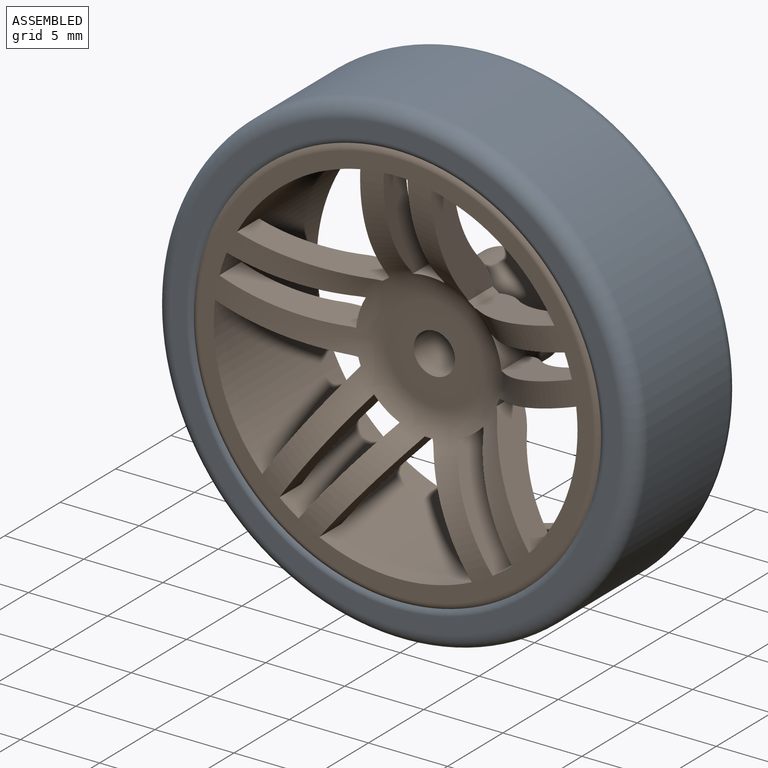
[diagram: assembled view]
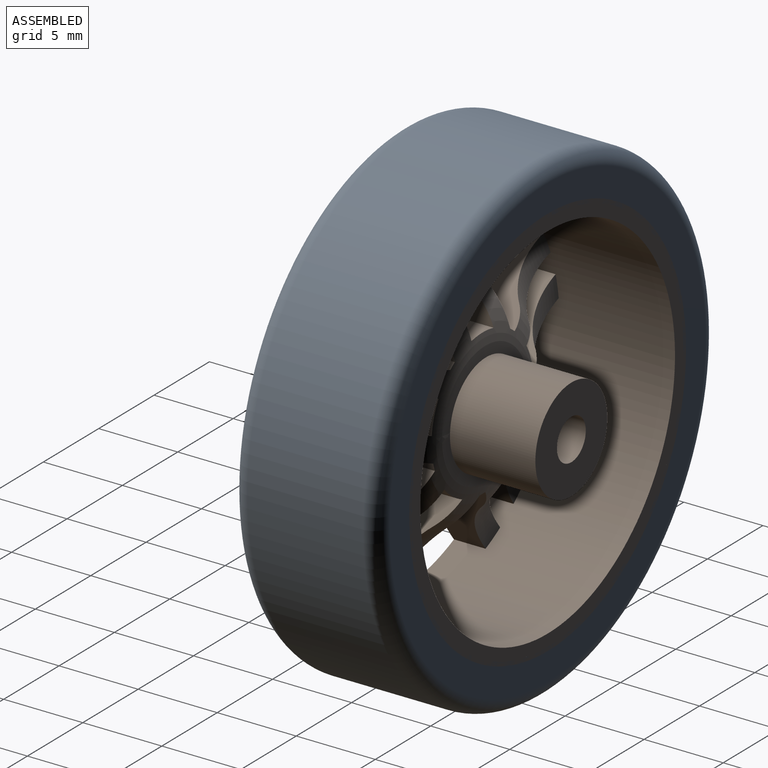
[diagram: assembled view, second angle]
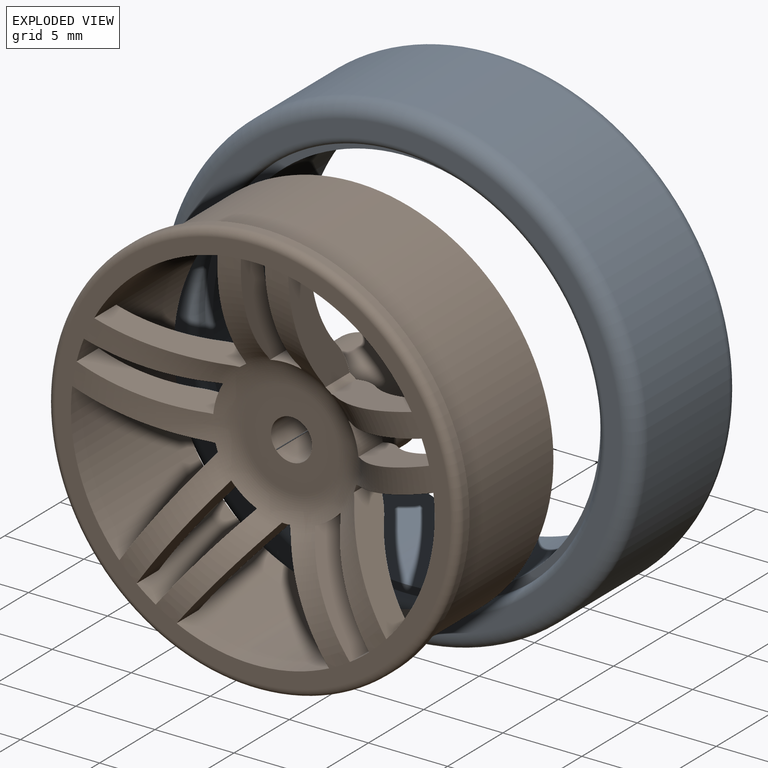
[diagram: exploded view]
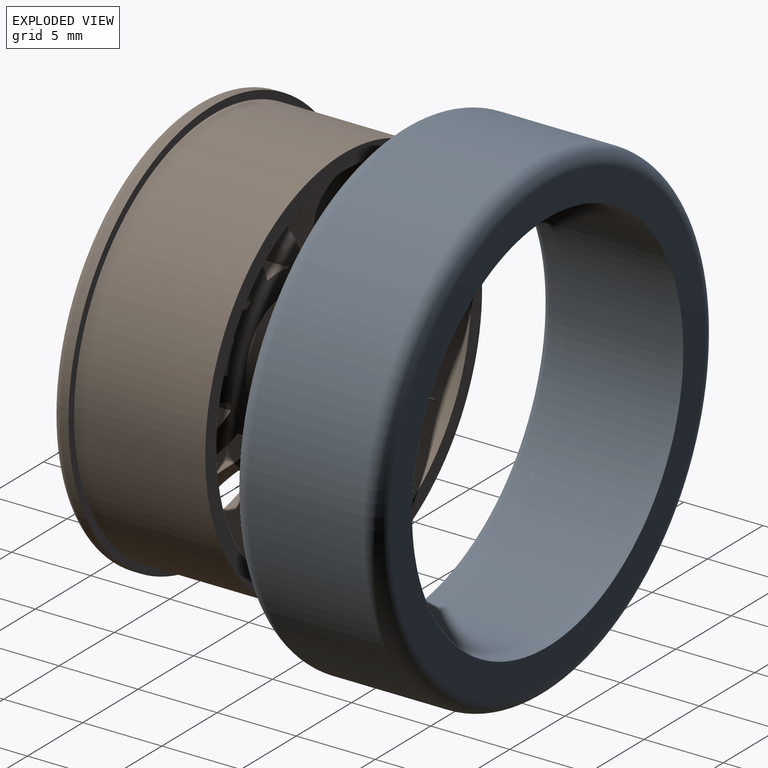
[diagram: exploded view, second angle]
FCSTD DOCUMENT  (FreeCAD 1.0R39285 (Git))
Label: 5SpokeWheel1
License: All rights reserved
LicenseURL: https://en.wikipedia.org/wiki/All_rights_reserved
objects: App::Link×2, App::FeaturePython×2, Assembly::JointGroup×1, Assembly::AssemblyObject×1
EXTERNAL_REF file=RimsAndTires/5SpokeRim1.FCStd obj=Body
EXTERNAL_REF file=RimsAndTires/Tire.FCStd obj=Body

FEATURE [App::Link] _SpokeRim1  label="5SpokeRim1"
  LinkedObject = -> <external RimsAndTires/5SpokeRim1.FCStd>#Body
FEATURE [App::FeaturePython] GroundedJoint  # Assembly grounded joint (typed FeaturePython)
  ObjectToGround = -> _SpokeRim1
FEATURE [App::Link] SingleTire
  LinkPlacement = pos=(0,-0.75,0) rot=(0,0,1;0rad)
  LinkedObject = -> <external RimsAndTires/Tire.FCStd>#Body
  Placement = pos=(0,-0.75,0) rot=(0,0,1;0rad)
FEATURE [App::FeaturePython] Joint  label="Fixed"  # Assembly joint (typed FeaturePython)
  Activated = true
  AngleMax = 0
  AngleMin = 0
  Detach1 = false
  Detach2 = false
  Distance = 0
  Distance2 = 0
  EnableAngleMax = false
  EnableAngleMin = false
  EnableLengthMax = false
  EnableLengthMin = false
  JointType = 0 (Fixed)
  LengthMax = 0
  LengthMin = 0
  Placement1 = pos=(0,-4.4,0) rot=(1,0,0;1.5708rad)
  Placement2 = pos=(0,-3.65,0) rot=(1,0,0;1.5708rad)
  Reference1 = -> Assembly [_SpokeRim1.Edge3,_SpokeRim1.Edge3]
  Reference2 = -> Assembly [SingleTire.Edge15,SingleTire.Edge15]
FEATURE [Assembly::JointGroup] Joints
  Group = -> [GroundedJoint,Joint]
FEATURE [Assembly::AssemblyObject] Assembly
  Group = -> [Joints,_SpokeRim1,GroundedJoint,SingleTire,Joint]
  Origin = -> Origin
  Type = Assembly

RESOLVED EXTERNAL PARTS (link-assembly join: the EXTERNAL_REF files above that resolve inside this repo's crawl, each included once):
---- part RimsAndTires/5SpokeRim1.FCStd = doc fcstd_a5917211275b ----
FCSTD DOCUMENT  (FreeCAD 1.0R39285 (Git))
Label: 5SpokeRim1
License: All rights reserved
LicenseURL: https://en.wikipedia.org/wiki/All_rights_reserved
objects: Sketcher::SketchObject×2, PartDesign::Revolution×1, PartDesign::Pocket×1, PartDesign::PolarPattern×1, App::Link×1, PartDesign::Fillet×1, PartDesign::Body×1
note: 16 computed .brp shape members not serialized (recipe doc carries the construction recipe); baked Part::Feature solids carry a one-line shape summary decoded from their .brp
EXTERNAL_REF file=../../../../Dimentions.FCStd obj=dd002

FEATURE [Sketcher::SketchObject] Sketch
  ArcFitTolerance = 1e-06
  AttachmentSupport = -> [XY_Plane]
  FullyConstrained = true
  MakeInternals = false
  MapMode = 5
  expr: Constraints[33] = <<Wheel>>.SingleThickness
  expr: Constraints[34] = <<Wheel>>.RimDiameter
  expr: Constraints[35] = <<Wheel>>.StemDiameter
  expr: Constraints[36] = <<Wheel>>.StemPoke
  expr: Constraints[37] = <<Wheel>>.AxelHoleDiameter
  expr: Constraints[52] = <<Wheel>>.RimLipThickness
  expr: Constraints[53] = <<Wheel>>.TireBeadWidth
  expr: Constraints[63] = <<Wheel>>.HubDip
  sketch-geometry (29):
    g0: LineSegment [constr] StartX=-1.3 StartY=5.4 StartZ=0 EndX=-1.3 EndY=-5.4 EndZ=0
    g1: LineSegment [constr] StartX=-1.3 StartY=-5.4 StartZ=0 EndX=-13 EndY=-5.4 EndZ=0
    g2: LineSegment [constr] StartX=-13 StartY=-5.4 StartZ=0 EndX=-13 EndY=3.9 EndZ=0
    g3: LineSegment [constr] StartX=-13 StartY=3.9 StartZ=0 EndX=-3.25 EndY=3.9 EndZ=0
    g4: LineSegment [constr] StartX=-3.25 StartY=3.9 StartZ=0 EndX=-3.25 EndY=5.4 EndZ=0
    g5: LineSegment [constr] StartX=-3.25 StartY=5.4 StartZ=0 EndX=-1.3 EndY=5.4 EndZ=0
    g6: LineSegment [constr] StartX=1.3 StartY=5.4 StartZ=0 EndX=1.3 EndY=-5.4 EndZ=0
    g7: LineSegment [constr] StartX=1.3 StartY=-5.4 StartZ=0 EndX=13 EndY=-5.4 EndZ=0
    g8: LineSegment [constr] StartX=13 StartY=-5.4 StartZ=0 EndX=13 EndY=3.9 EndZ=0
    g9: LineSegment [constr] StartX=13 StartY=3.9 StartZ=0 EndX=11.5 EndY=3.9 EndZ=0
    g10: LineSegment [constr] StartX=11.5 StartY=3.9 StartZ=0 EndX=11.5 EndY=-1.4 EndZ=0
    g11: LineSegment [constr] StartX=11.5 StartY=-1.4 StartZ=0 EndX=3.25 EndY=-1.4 EndZ=0
    g12: LineSegment [constr] StartX=3.25 StartY=-1.4 StartZ=0 EndX=3.25 EndY=5.4 EndZ=0
    g13: LineSegment StartX=3.25 StartY=5.4 StartZ=0 EndX=1.3 EndY=5.4 EndZ=0
    g14: LineSegment [constr] StartX=11.5 StartY=-1.4 StartZ=0 EndX=11.5 EndY=-5.4 EndZ=0
    g15: LineSegment StartX=11.5 StartY=3.9 StartZ=0 EndX=12.5 EndY=3.9 EndZ=0
    g16: LineSegment StartX=12.5 StartY=3.9 StartZ=0 EndX=12.5 EndY=-4.4 EndZ=0
    g17: LineSegment StartX=12.5 StartY=-4.4 StartZ=0 EndX=13 EndY=-4.4 EndZ=0
    g18: LineSegment StartX=13 StartY=-4.4 StartZ=0 EndX=13 EndY=-5.4 EndZ=0
    g19: LineSegment StartX=1.3 StartY=5.4 StartZ=0 EndX=1.3 EndY=-1.9 EndZ=0
    g20: LineSegment StartX=1.3 StartY=-1.9 StartZ=0 EndX=3 EndY=-1.9 EndZ=0
    g21: ArcOfCircle CenterX=3 CenterY=-4.67143 CenterZ=0 NormalX=0 NormalY=0 NormalZ=1 AngleXU=0 Radius=2.77143 StartAngle=0.789582 EndAngle=1.5708
    g22: ArcOfCircle CenterX=11.5 CenterY=3.9 CenterZ=0 NormalX=0 NormalY=0 NormalZ=1 AngleXU=0 Radius=9.3 StartAngle=3.93117 EndAngle=4.71239
    g23: LineSegment StartX=11.5 StartY=-5.4 StartZ=0 EndX=13 EndY=-5.4 EndZ=0
    g24: LineSegment StartX=3.25 StartY=5.4 StartZ=0 EndX=3.25 EndY=-0.00294118 EndZ=0
    g25: ArcOfCircle CenterX=3.25 CenterY=-4.41933 CenterZ=0 NormalX=0 NormalY=0 NormalZ=1 AngleXU=0 Radius=4.41639 StartAngle=0.789582 EndAngle=1.5708
    g26: ArcOfCircle CenterX=11.5 CenterY=3.9 CenterZ=0 NormalX=0 NormalY=0 NormalZ=1 AngleXU=0 Radius=7.3 StartAngle=3.93117 EndAngle=4.71239
    g27: LineSegment StartX=11.5 StartY=-3.4 StartZ=0 EndX=11.5 EndY=3.9 EndZ=0
    g28: LineSegment [constr] StartX=4.95148 StartY=-2.70355 StartZ=0 EndX=6.35976 EndY=-1.28343 EndZ=0
  constraints (78):
    c: Vertical(g0)
    c: Coincident(g0,g1)
    c: Horizontal(g1)
    c: Coincident(g1,g2)
    c: Vertical(g2)
    c: Coincident(g2,g3)
    c: Horizontal(g3)
    c: Coincident(g3,g4)
    c: Vertical(g4)
    c: Coincident(g4,g5)
    c: Coincident(g5,g0)
    c: Horizontal(g5)
    c: Coincident(g6,g7)
    c: Horizontal(g7)
    c: Coincident(g7,g8)
    c: Vertical(g8)
    c: Coincident(g8,g9)
    c: Horizontal(g9)
    c: Coincident(g9,g10)
    c: Vertical(g10)
    c: Coincident(g10,g11)
    c: Horizontal(g11)
    c: Coincident(g11,g12)
    c: Vertical(g12)
    c: Coincident(g12,g13)
    c: Coincident(g13,g6)
    c: Symmetric(g0,g6,g-2)
    c: Horizontal(g13)
    c: Equal(g13,g5)
    c: Symmetric(g6,g6,g-1)
    c: Equal(g0,g6)
    c: Equal(g2,g8)
    c: Equal(g1,g7)
    c: DistanceY(g6,g6) = 10.8
    c: DistanceX(g1,g7) = 26
    c: Distance(g4,g12) = 6.5
    c: DistanceY(g9,g12) = 1.5
    c: Distance(g0,g6) = 2.6
    c: DistanceX(g10,g7) = 1.5
    c: Coincident(g14,g10)
    c: PointOnObject(g14,g7)
    c: Vertical(g14)
    c: DistanceY(g14,g14) = 4
    c: Coincident(g9,g15)
    c: PointOnObject(g15,g9)
    c: Coincident(g15,g16)
    c: Vertical(g16)
    c: Coincident(g16,g17)
    c: Horizontal(g17)
    c: Coincident(g17,g18)
    c: Coincident(g18,g7)
    c: Vertical(g18)
    c: DistanceY(g18,g18) = 1
    c: DistanceX(g17,g17) = 0.5
    c: Coincident(g6,g19)
    c: PointOnObject(g19,g6)
    c: Coincident(g19,g20)
    c: Horizontal(g20)
    c: Tangent(g20,g21) = 1.5708
    c: Tangent(g21,g22) = 1.5708
    c: Coincident(g22,g14)
    c: Tangent(g22,g23) = -1.5708
    c: Coincident(g23,g7)
    c: DistanceY(g6,g19) = 3.5
    c: DistanceX(g-1,g20) = 3
    c: Coincident(g12,g24)
    c: PointOnObject(g24,g12)
    c: Perpendicular(g24,g25) = 4.71239
    c: Tangent(g25,g26) = 1.5708
    c: Perpendicular(g26,g27) = 1.5708
    c: Coincident(g27,g9)
    c: Vertical(g27)
    c: Horizontal(g26,g9)
    c: DistanceY(g14,g26) = 2
    c: Coincident(g28,g21)
    c: Coincident(g28,g25)
    c: Perpendicular(g22,g28)
    c: Perpendicular(g26,g28)
FEATURE [PartDesign::Revolution] Revolution
  Angle = 360
  Angle2 = 60
  Axis = (0,1,0)
  Base = (0,0,0)
  Profile = -> Sketch
  ReferenceAxis = -> Sketch [V_Axis]
  Refine = true
  Reversed = true
  Suppressed = false
  Type = 0
FEATURE [Sketcher::SketchObject] Sketch001
  ArcFitTolerance = 1e-06
  AttachmentSupport = -> [XZ_Plane]
  ExternalGeometry = -> [Revolution]
  FullyConstrained = true
  MakeInternals = false
  MapMode = 5
  Placement = pos=(0,0,0) rot=(1,0,0;1.5708rad)
  sketch-geometry (18):
    g0: LineSegment StartX=-0.75 StartY=11.4755 StartZ=0 EndX=-1 EndY=4.5 EndZ=0
    g1: LineSegment [constr] StartX=-1 StartY=4.5 StartZ=0 EndX=1 EndY=4.5 EndZ=0
    g2: LineSegment StartX=1 StartY=4.5 StartZ=0 EndX=0.75 EndY=11.4755 EndZ=0
    g3: LineSegment [constr] StartX=0.75 StartY=11.4755 StartZ=0 EndX=-0.75 EndY=11.4755 EndZ=0
    g4: Circle [constr] CenterX=0 CenterY=0 CenterZ=0 NormalX=0 NormalY=0 NormalZ=1 AngleXU=0 Radius=4.60977
    g5: LineSegment [constr] StartX=0 StartY=0 StartZ=0 EndX=10.9371 EndY=3.5537 EndZ=0
    g6: LineSegment [constr] StartX=3.97074 StartY=2.34163 StartZ=0 EndX=4.58877 EndY=0.43952 EndZ=0
    g7: LineSegment [constr] StartX=4.58877 StartY=0.43952 StartZ=0 EndX=11.1456 EndY=2.83284 EndZ=0
    g8: LineSegment [constr] StartX=3.97074 StartY=2.34163 StartZ=0 EndX=10.6821 EndY=4.25942 EndZ=0
    g9: LineSegment [constr] StartX=10.6821 StartY=4.25942 StartZ=0 EndX=11.1456 EndY=2.83284 EndZ=0
    g10: LineSegment StartX=2.50278 StartY=3.87119 StartZ=0 EndX=2.23724 EndY=11.2803 EndZ=0
    g11: LineSegment StartX=2.90832 StartY=3.57655 StartZ=0 EndX=10.0368 EndY=5.61354 EndZ=0
    g12: ArcOfCircle CenterX=0 CenterY=0 CenterZ=0 NormalX=0 NormalY=0 NormalZ=1 AngleXU=0 Radius=4.60977 StartAngle=0.88808 EndAngle=0.996875
    g13: ArcOfCircle CenterX=0 CenterY=0 CenterZ=0 NormalX=0 NormalY=0 NormalZ=1 AngleXU=0 Radius=11.5 StartAngle=0.50995 EndAngle=1.37501
    g14: ArcOfCircle CenterX=0 CenterY=0 CenterZ=0 NormalX=0 NormalY=0 NormalZ=1 AngleXU=0 Radius=11.5 StartAngle=1.50553 EndAngle=1.63606
    g15: ArcOfCircle CenterX=7e-16 CenterY=0 CenterZ=0 NormalX=0 NormalY=0 NormalZ=1 AngleXU=0 Radius=4.60977 StartAngle=1.35213 EndAngle=1.78947
    g16: LineSegment [constr] StartX=0.75 StartY=11.4755 StartZ=0 EndX=2.23724 EndY=11.2803 EndZ=0
    g17: LineSegment [constr] StartX=10.0368 StartY=5.61354 StartZ=0 EndX=10.6821 EndY=4.25942 EndZ=0
  constraints (47):
    c: Coincident(g0,g1)
    c: Coincident(g1,g2)
    c: Coincident(g2,g3)
    c: Coincident(g3,g0)
    c: Symmetric(g0,g2,g-2)
    c: Symmetric(g0,g1,g-2)
    c: DistanceY(g-1,g1) = 4.5
    c: PointOnObject(g2,g-3)
    c: Distance(g1,g1) = 2
    c: Distance(g3,g3) = 1.5
    c: Coincident(g4,g-1)
    c: PointOnObject(g1,g4)
    c: Coincident(g5,g4)
    c: PointOnObject(g5,g-3)
    c: Angle(g5,g-2) = 1.25664
    c: PointOnObject(g6,g4)
    c: Coincident(g6,g7)
    c: Coincident(g6,g8)
    c: PointOnObject(g8,g-3)
    c: Equal(g6,g1)
    c: Symmetric(g6,g6,g5)
    c: Coincident(g9,g8)
    c: Coincident(g9,g7)
    c: Symmetric(g7,g8,g5)
    c: Equal(g9,g3)
    c: PointOnObject(g10,g4)
    c: PointOnObject(g10,g-3)
    c: Coincident(g12,g4)
    c: Coincident(g12,g10)
    c: Coincident(g12,g11)
    c: Coincident(g13,g4)
    c: Coincident(g13,g10)
    c: Coincident(g13,g11)
    c: Parallel(g11,g8)
    c: Parallel(g10,g2)
    c: Distance(g2,g10) = 1.5
    c: Coincident(g14,g0)
    c: Coincident(g14,g4)
    c: Coincident(g15,g0)
    c: Coincident(g1,g15)
    c: Equal(g15,g4)
    c: PointOnObject(g14,g2)
    c: Equal(g17,g16)
    c: Coincident(g16,g14)
    c: Coincident(g16,g10)
    c: Coincident(g17,g11)
    c: Coincident(g8,g17)
FEATURE [PartDesign::Pocket] Pocket
  BaseFeature = -> Revolution
  Direction = (0,1,-2e-16)
  Length = 5
  Length2 = 5
  Midplane = true
  Profile = -> Sketch001
  ReferenceAxis = -> Sketch001 [N_Axis]
  Refine = true
  Suppressed = false
  Type = 1
FEATURE [PartDesign::PolarPattern] PolarPattern
  Angle = 360
  Axis = -> Sketch001 [N_Axis]
  BaseFeature = -> Pocket
  Mode = 0
  Occurrences = 5
  Offset = 120
  Originals = -> [Pocket]
  Refine = true
  Suppressed = false
  TransformMode = 0
FEATURE [App::Link] Link  label="Wheel"
  LinkedObject = -> <external ../../../../Dimentions.FCStd>#dd002
FEATURE [PartDesign::Fillet] Fillet
  Base = -> PolarPattern [Edge26]
  BaseFeature = -> PolarPattern
  Radius = 0.5
  Refine = true
  SupportTransform = false
  Suppressed = false
  UseAllEdges = false
FEATURE [PartDesign::Body] Body  label="5SpokeRim1"
  AllowCompound = false
  Group = -> [Sketch,Revolution,Sketch001,Pocket,PolarPattern,Fillet]
  Origin = -> Origin
  Tip = -> Fillet
---- part RimsAndTires/Tire.FCStd = doc fcstd_0f301d4dc628 ----
FCSTD DOCUMENT  (FreeCAD 1.0R39285 (Git))
Label: Tire
License: All rights reserved
LicenseURL: https://en.wikipedia.org/wiki/All_rights_reserved
objects: PartDesign::Fillet×2, Sketcher::SketchObject×1, PartDesign::Revolution×1, App::Link×1, PartDesign::Body×1
note: 12 computed .brp shape members not serialized (recipe doc carries the construction recipe); baked Part::Feature solids carry a one-line shape summary decoded from their .brp
EXTERNAL_REF file=Dished5SpokeRim.FCStd obj=Link

FEATURE [Sketcher::SketchObject] Sketch
  ArcFitTolerance = 1e-06
  AttachmentSupport = -> [XY_Plane]
  FullyConstrained = false
  MakeInternals = false
  MapMode = 5
  expr: Constraints[15] = <<Wheel>>.Diameter
  expr: Constraints[31] = <<Wheel>>.TireThicnkess
  expr: Constraints[33] = <<Wheel>>.SingleThickness - <<Wheel>>.StemPoke
  expr: Constraints[35] = <<Wheel>>.TireBeadWidth
  expr: Constraints[36] = <<Wheel>>.RimLipThickness
  sketch-geometry (16):
    g0: LineSegment [constr] StartX=-1.3 StartY=6.15 StartZ=0 EndX=-1.3 EndY=-4.65 EndZ=0
    g1: LineSegment [constr] StartX=-1.3 StartY=-4.65 StartZ=0 EndX=-15.25 EndY=-4.65 EndZ=0
    g2: LineSegment [constr] StartX=-15.25 StartY=-4.65 StartZ=0 EndX=-15.25 EndY=4.65 EndZ=0
    g3: LineSegment [constr] StartX=-15.25 StartY=4.65 StartZ=0 EndX=-3.25 EndY=4.65 EndZ=0
    g4: LineSegment [constr] StartX=-3.25 StartY=4.65 StartZ=0 EndX=-3.25 EndY=6.15 EndZ=0
    g5: LineSegment [constr] StartX=-3.25 StartY=6.15 StartZ=0 EndX=-1.3 EndY=6.15 EndZ=0
    g6: LineSegment StartX=15.25 StartY=-4.65 StartZ=0 EndX=15.25 EndY=4.65 EndZ=0
    g7: LineSegment [constr] StartX=15.25 StartY=4.65 StartZ=0 EndX=12.75 EndY=4.65 EndZ=0
    g8: LineSegment [constr] StartX=12.75 StartY=4.65 StartZ=0 EndX=12.75 EndY=3.65 EndZ=0
    g9: LineSegment [constr] StartX=12.75 StartY=3.65 StartZ=0 EndX=12.25 EndY=3.65 EndZ=0
    g10: LineSegment [constr] StartX=12.25 StartY=3.65 StartZ=0 EndX=12.25 EndY=-3.65 EndZ=0
    g11: LineSegment StartX=12.25 StartY=-3.65 StartZ=0 EndX=12.75 EndY=-3.65 EndZ=0
    g12: LineSegment StartX=12.75 StartY=-3.65 StartZ=0 EndX=12.75 EndY=-4.65 EndZ=0
    g13: LineSegment StartX=12.75 StartY=-4.65 StartZ=0 EndX=15.25 EndY=-4.65 EndZ=0
    g14: LineSegment StartX=12.25 StartY=-3.65 StartZ=0 EndX=12.25 EndY=4.65 EndZ=0
    g15: LineSegment StartX=12.25 StartY=4.65 StartZ=0 EndX=15.25 EndY=4.65 EndZ=0
  constraints (44):
    c: Vertical(g0)
    c: Coincident(g0,g1)
    c: Horizontal(g1)
    c: Coincident(g1,g2)
    c: Vertical(g2)
    c: Coincident(g2,g3)
    c: Horizontal(g3)
    c: Coincident(g3,g4)
    c: Vertical(g4)
    c: Coincident(g4,g5)
    c: Coincident(g5,g0)
    c: Horizontal(g5)
    c: Coincident(g6,g7)
    c: Horizontal(g7)
    c: Equal(g2,g6)
    c: DistanceX(g1,g6) = 30.5
    c: Symmetric(g6,g6,g-1)
    c: Coincident(g7,g8)
    c: Coincident(g8,g9)
    c: Horizontal(g9)
    c: Coincident(g9,g10)
    c: Vertical(g10)
    c: Coincident(g10,g11)
    c: Horizontal(g11)
    c: Coincident(g11,g12)
    c: Vertical(g12)
    c: Coincident(g12,g13)
    c: Coincident(g13,g6)
    c: Horizontal(g13)
    c: Vertical(g8)
    c: Equal(g8,g12)
    c: Distance(g13,g13) = 2.5
    c: Symmetric(g1,g6,g-2)
    c: DistanceY(g6,g6) = 9.3
    c: Equal(g13,g7)
    c: DistanceX(g11,g11) = 0.5
    c: DistanceY(g12,g12) = 1
    c: Coincident(g10,g14)
    c: Vertical(g14)
    c: Coincident(g14,g15)
    c: Coincident(g15,g6)
    c: Horizontal(g15)
    c: DistanceX(g-1,g12) = 12.75
    c: DistanceX(g-1,g10) = 12.25
FEATURE [PartDesign::Revolution] Revolution
  Angle = 360
  Angle2 = 60
  Axis = (0,1,0)
  Base = (0,0,0)
  Profile = -> Sketch
  ReferenceAxis = -> Sketch [V_Axis]
  Refine = true
  Reversed = true
  Suppressed = false
  Type = 0
FEATURE [PartDesign::Fillet] Fillet
  Base = -> Revolution [Edge3]
  BaseFeature = -> Revolution
  Radius = 0.5
  Refine = true
  SupportTransform = false
  Suppressed = false
  UseAllEdges = false
FEATURE [App::Link] Link001  label="Wheel"
  LinkedObject = -> <external Dished5SpokeRim.FCStd>#Link
FEATURE [PartDesign::Fillet] Fillet001
  Base = -> Fillet [Edge10,Edge7]
  BaseFeature = -> Fillet
  Radius = 1
  Refine = true
  SupportTransform = false
  Suppressed = false
  UseAllEdges = false
FEATURE [PartDesign::Body] Body  label="SingleTire"
  AllowCompound = false
  Group = -> [Sketch,Revolution,Fillet,Fillet001]
  Origin = -> Origin
  Tip = -> Fillet001
